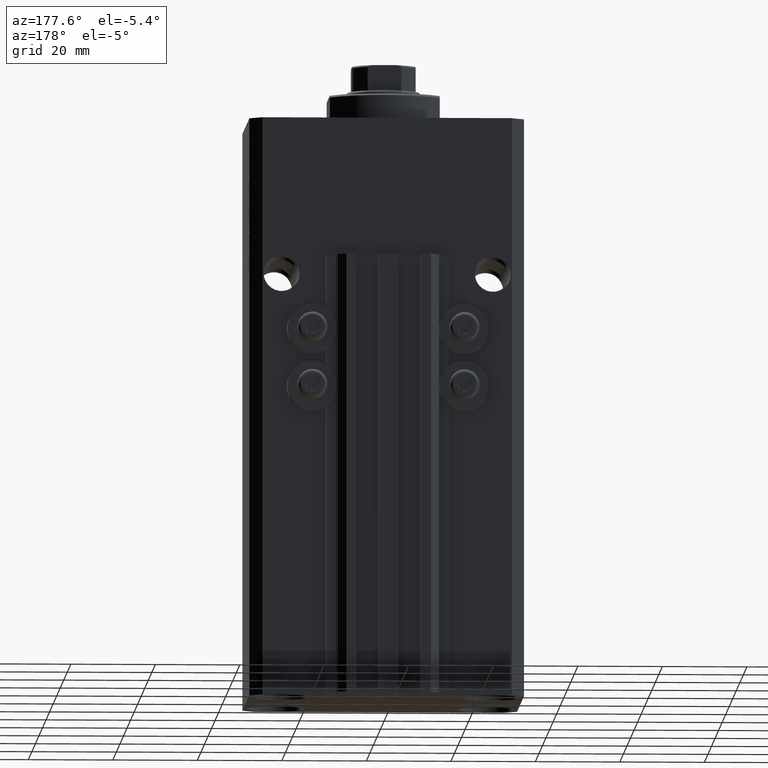
[diagram: clean part render]
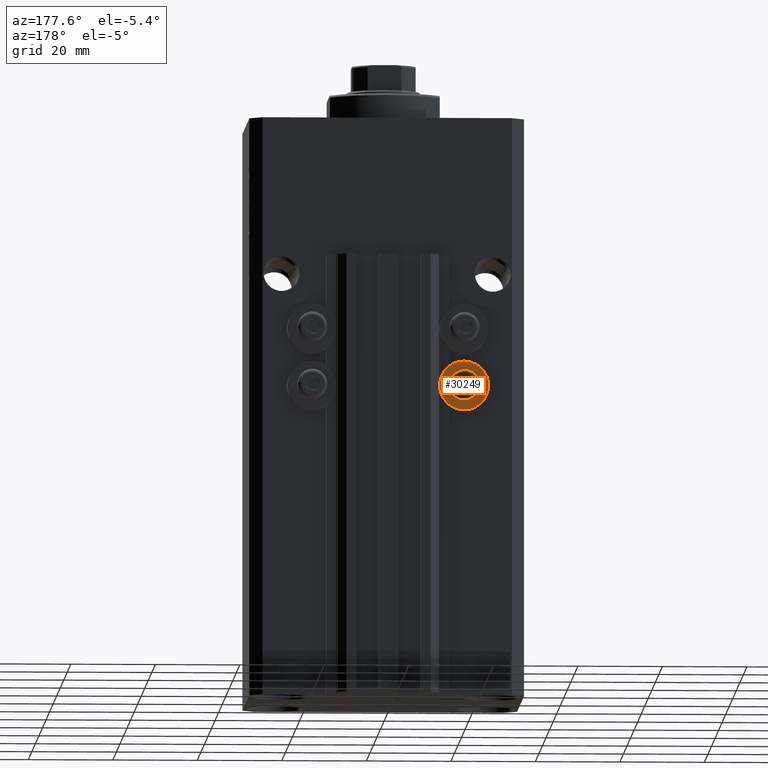
[diagram: same view with one face highlighted and labeled with its STEP entity id]
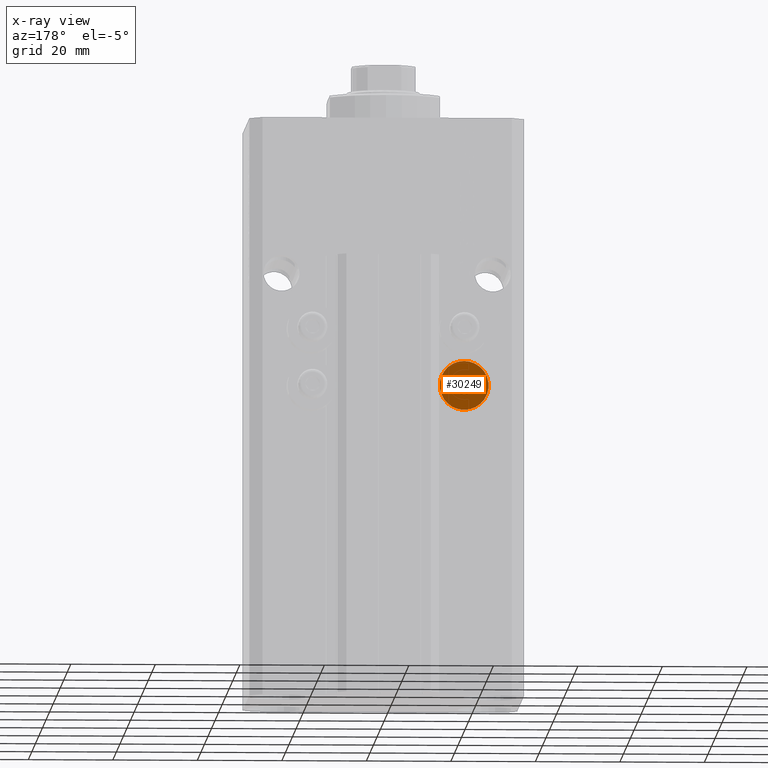
[diagram: x-ray of the same camera — body ghosted, the highlighted face saturated]
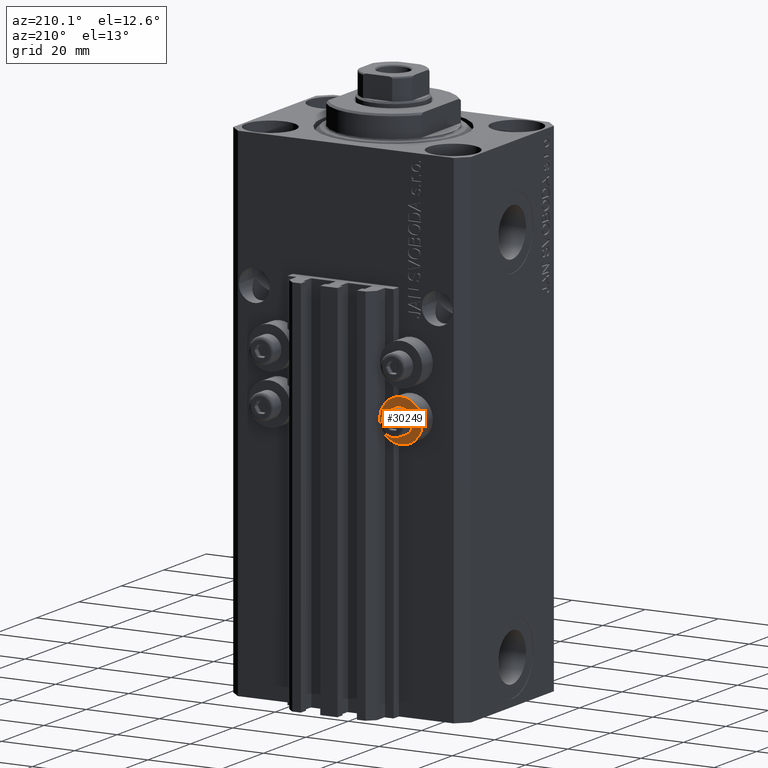
[diagram: same view with one face highlighted and labeled with its STEP entity id]
A machine part, auxiliary view. The second image highlights one B-rep face of the part: STEP entity #30249.
The next image is the same camera in x-ray: the body ghosted, the highlighted face saturated — about 0% of this face is hidden behind the body in this view.
A second angle (auxiliary view) of the same face is appended — the face is thin or edge-on in the first view.
In plain terms, the highlighted planar face has unit normal (0, -1, 0).
Its self-contained STEP definition (entity closure, byte-faithful):
#1506 = CARTESIAN_POINT ( 'NONE',  ( -18.00000000000000355, 27.49999999996051514, -58.20000000000000284 ) ) ;
#1729 = DIRECTION ( 'NONE',  ( -0.000000000000000000, -1.000000000000000000, -0.000000000000000000 ) ) ;
#2818 = CARTESIAN_POINT ( 'NONE',  ( -18.00000000000000355, 27.49999999996051514, -64.00000000000000000 ) ) ;
#4819 = DIRECTION ( 'NONE',  ( -0.000000000000000000, -1.000000000000000000, -0.000000000000000000 ) ) ;
#5530 = DIRECTION ( 'NONE',  ( 0.000000000000000000, 0.000000000000000000, -1.000000000000000000 ) ) ;
#5911 = ORIENTED_EDGE ( 'NONE', *, *, #8098, .T. ) ;
#6997 = FACE_BOUND ( 'NONE', #28320, .T. ) ;
#8098 = EDGE_CURVE ( 'NONE', #24348, #22590, #34027, .T. ) ;
#8337 = CIRCLE ( 'NONE', #13659, 5.799999999999999822 ) ;
#9902 = DIRECTION ( 'NONE',  ( -0.000000000000000000, -1.000000000000000000, -0.000000000000000000 ) ) ;
#9915 = ORIENTED_EDGE ( 'NONE', *, *, #15995, .T. ) ;
#10392 = AXIS2_PLACEMENT_3D ( 'NONE', #17086, #9902, #31618 ) ;
#10585 = FACE_OUTER_BOUND ( 'NONE', #24763, .T. ) ;
#10706 = ORIENTED_EDGE ( 'NONE', *, *, #29171, .F. ) ;
#10819 = PLANE ( 'NONE',  #34393 ) ;
#13576 = DIRECTION ( 'NONE',  ( 0.000000000000000000, 0.000000000000000000, -1.000000000000000000 ) ) ;
#13659 = AXIS2_PLACEMENT_3D ( 'NONE', #2818, #20743, #13576 ) ;
#14417 = DIRECTION ( 'NONE',  ( 0.000000000000000000, -1.000000000000000000, 0.000000000000000000 ) ) ;
#15191 = CIRCLE ( 'NONE', #23570, 2.000000000000001776 ) ;
#15600 = EDGE_CURVE ( 'NONE', #31348, #37325, #8337, .T. ) ;
#15995 = EDGE_CURVE ( 'NONE', #22590, #24348, #15191, .T. ) ;
#17086 = CARTESIAN_POINT ( 'NONE',  ( -18.00000000000000355, 27.49999999996051514, -64.00000000000000000 ) ) ;
#17554 = CARTESIAN_POINT ( 'NONE',  ( -18.00000000000000355, 27.49999999996051514, -69.79999999999999716 ) ) ;
#19133 = CIRCLE ( 'NONE', #22933, 5.799999999999999822 ) ;
#20743 = DIRECTION ( 'NONE',  ( -0.000000000000000000, -1.000000000000000000, -0.000000000000000000 ) ) ;
#22590 = VERTEX_POINT ( 'NONE', #24651 ) ;
#22933 = AXIS2_PLACEMENT_3D ( 'NONE', #27735, #1729, #5530 ) ;
#23570 = AXIS2_PLACEMENT_3D ( 'NONE', #37525, #4819, #26556 ) ;
#24348 = VERTEX_POINT ( 'NONE', #42838 ) ;
#24651 = CARTESIAN_POINT ( 'NONE',  ( -18.00000000000000355, 27.49999999996051514, -66.00000000000000000 ) ) ;
#24763 = EDGE_LOOP ( 'NONE', ( #10706, #37213 ) ) ;
#26556 = DIRECTION ( 'NONE',  ( 0.000000000000000000, 0.000000000000000000, -1.000000000000000000 ) ) ;
#27735 = CARTESIAN_POINT ( 'NONE',  ( -18.00000000000000355, 27.49999999996051514, -64.00000000000000000 ) ) ;
#28320 = EDGE_LOOP ( 'NONE', ( #5911, #9915 ) ) ;
#29171 = EDGE_CURVE ( 'NONE', #37325, #31348, #19133, .T. ) ;
#30249 = ADVANCED_FACE ( 'NONE', ( #6997, #10585 ), #10819, .F. ) ;
#31348 = VERTEX_POINT ( 'NONE', #1506 ) ;
#31618 = DIRECTION ( 'NONE',  ( 0.000000000000000000, 0.000000000000000000, -1.000000000000000000 ) ) ;
#34027 = CIRCLE ( 'NONE', #10392, 2.000000000000001776 ) ;
#34393 = AXIS2_PLACEMENT_3D ( 'NONE', #36127, #14417, #40164 ) ;
#36127 = CARTESIAN_POINT ( 'NONE',  ( -12.20000000000000284, 27.49999999996051514, -64.00000000000000000 ) ) ;
#37213 = ORIENTED_EDGE ( 'NONE', *, *, #15600, .F. ) ;
#37325 = VERTEX_POINT ( 'NONE', #17554 ) ;
#37525 = CARTESIAN_POINT ( 'NONE',  ( -18.00000000000000355, 27.49999999996051514, -64.00000000000000000 ) ) ;
#40164 = DIRECTION ( 'NONE',  ( 0.000000000000000000, 0.000000000000000000, 1.000000000000000000 ) ) ;
#42838 = CARTESIAN_POINT ( 'NONE',  ( -18.00000000000000355, 27.49999999996051514, -62.00000000000000000 ) ) ;